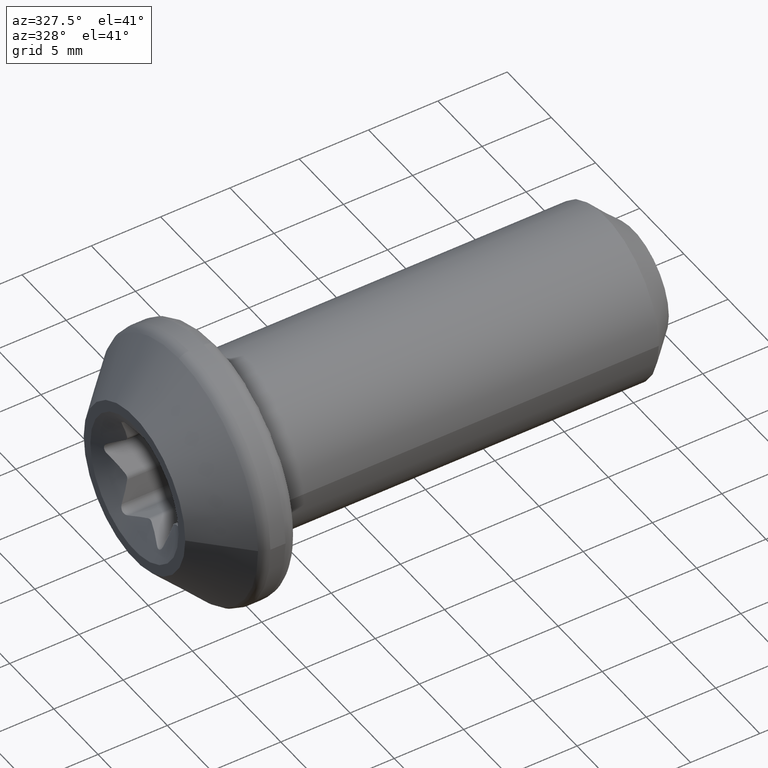
[diagram: clean part render]
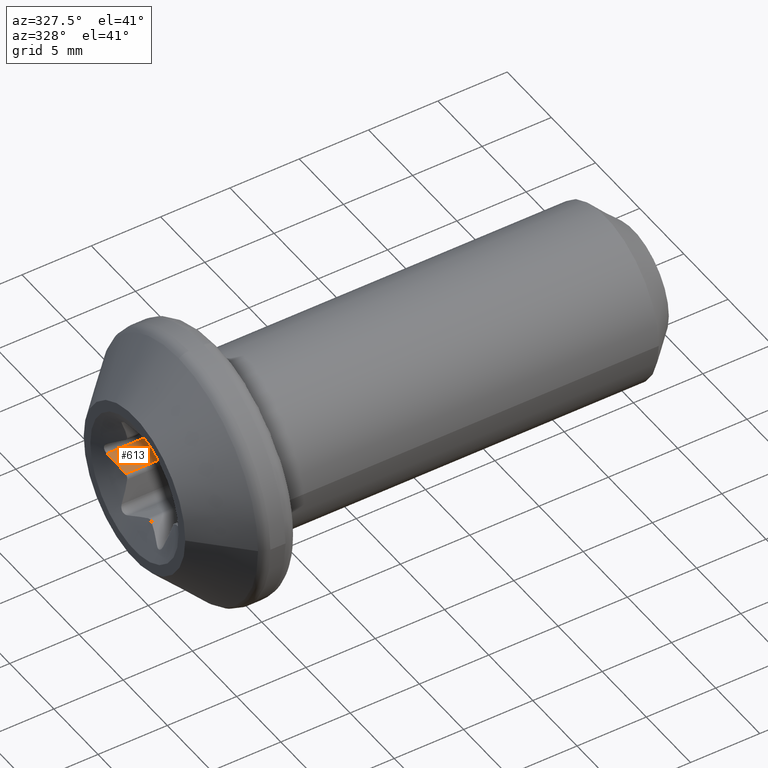
[diagram: same view with one face highlighted and labeled with its STEP entity id]
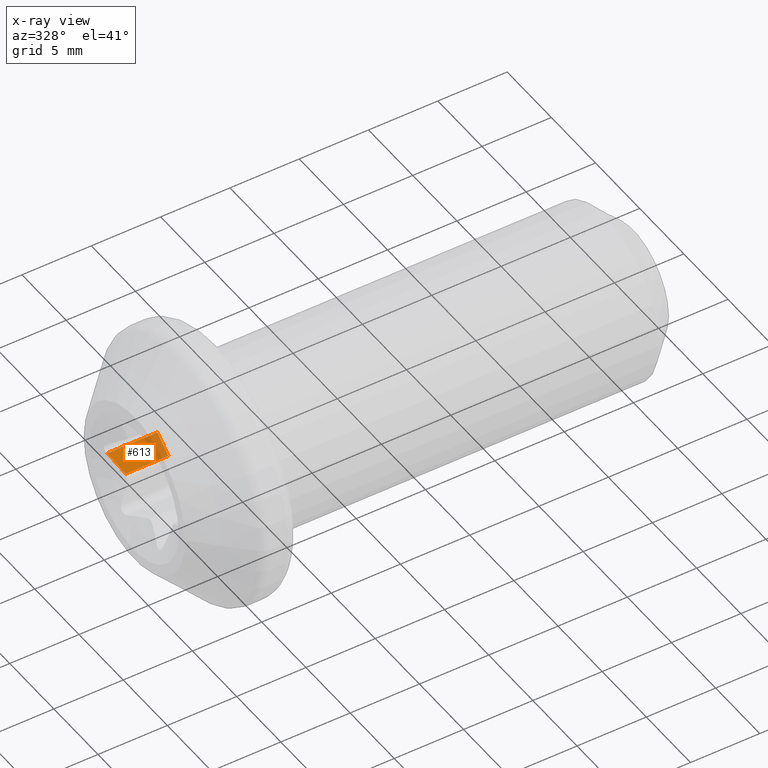
[diagram: x-ray of the same camera — body ghosted, the highlighted face saturated]
A machine part, auxiliary view. The second image highlights one B-rep face of the part: STEP entity #613.
The next image is the same camera in x-ray: the body ghosted, the highlighted face saturated — about 25% of this face is hidden behind the body in this view.
In plain terms, the highlighted planar face has unit normal (0, 0.6193, -0.7852).
Its self-contained STEP definition (entity closure, byte-faithful):
#30=(
BOUNDED_CURVE()
B_SPLINE_CURVE(2,(#1060,#1061,#1062),.UNSPECIFIED.,.F.,.F.)
B_SPLINE_CURVE_WITH_KNOTS((3,3),(0.616371369711005,0.781333518705879),
 .UNSPECIFIED.)
CURVE()
GEOMETRIC_REPRESENTATION_ITEM()
RATIONAL_B_SPLINE_CURVE((1.32740695193317,1.26421149258686,1.14373793007311))
REPRESENTATION_ITEM('')
);
#40=PLANE('',#684);
#64=FACE_OUTER_BOUND('',#99,.T.);
#99=EDGE_LOOP('',(#500,#501,#502,#503));
#155=LINE('',#1151,#196);
#158=LINE('',#1156,#199);
#163=LINE('',#1175,#204);
#196=VECTOR('',#783,10.);
#199=VECTOR('',#788,10.);
#204=VECTOR('',#805,10.);
#270=VERTEX_POINT('',#1048);
#271=VERTEX_POINT('',#1059);
#284=VERTEX_POINT('',#1149);
#285=VERTEX_POINT('',#1155);
#339=EDGE_CURVE('',#270,#271,#30,.T.);
#359=EDGE_CURVE('',#271,#284,#155,.T.);
#362=EDGE_CURVE('',#285,#284,#158,.T.);
#372=EDGE_CURVE('',#285,#270,#163,.T.);
#500=ORIENTED_EDGE('',*,*,#359,.F.);
#501=ORIENTED_EDGE('',*,*,#339,.F.);
#502=ORIENTED_EDGE('',*,*,#372,.F.);
#503=ORIENTED_EDGE('',*,*,#362,.T.);
#613=ADVANCED_FACE('',(#64),#40,.F.);
#684=AXIS2_PLACEMENT_3D('',#1174,#803,#804);
#783=DIRECTION('',(1.,0.,0.));
#788=DIRECTION('',(0.,0.785187616240949,0.61925794892101));
#803=DIRECTION('center_axis',(0.,0.61925794892101,-0.785187616240949));
#804=DIRECTION('ref_axis',(0.,0.785187616240949,0.61925794892101));
#805=DIRECTION('',(-1.,0.,0.));
#1048=CARTESIAN_POINT('',(-4.89114582408382,2.75461022292763,-1.37654551735297));
#1059=CARTESIAN_POINT('',(-5.43501685745723,4.00221099804019,-0.392593808120475));
#1060=CARTESIAN_POINT('Ctrl Pts',(-4.89114582408382,2.75461022292763,-1.37654551735297));
#1061=CARTESIAN_POINT('Ctrl Pts',(-5.06044415659571,3.29565581699661,-0.949836310628675));
#1062=CARTESIAN_POINT('Ctrl Pts',(-5.435016857457,4.00221099803973,-0.392593808120834));
#1149=CARTESIAN_POINT('',(-1.8,4.00221099804019,-0.392593808120476));
#1151=CARTESIAN_POINT('',(-6.,4.00221099804019,-0.392593808120476));
#1155=CARTESIAN_POINT('',(-1.8,2.75461022292763,-1.37654551735297));
#1156=CARTESIAN_POINT('',(-1.8,4.5,-1.88153796617355E-15));
#1174=CARTESIAN_POINT('Origin',(-6.,2.59807621135332,-1.5));
#1175=CARTESIAN_POINT('',(-6.,2.75461022292763,-1.37654551735297));